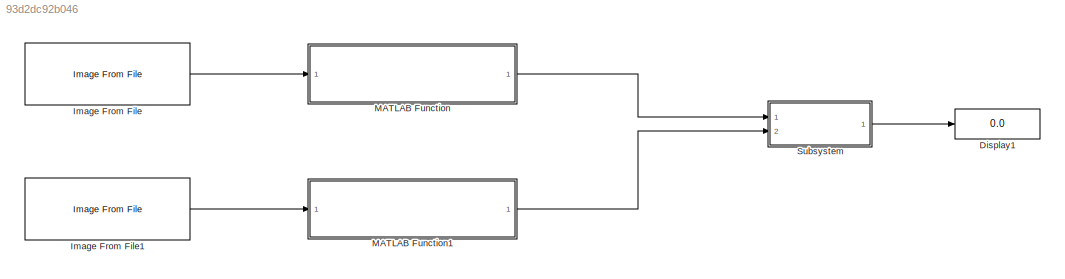
MODEL slx_93d2dc92b046
KIND model
CONFIG AbsTol = auto
CONFIG EnableMultiTasking = off
CONFIG FixedStep = auto
CONFIG MaxStep = auto
CONFIG MinStep = auto
CONFIG RelTol = 1e-3
CONFIG SampleTimeConstraint = Unconstrained
CONFIG SolverName = VariableStepAuto
CONFIG StartTime = 0.0
CONFIG StopTime = 10.0
BLOCK [Display] Display1
  Decimation = 1
  Ports = [1]
BLOCK [Reference] Image From File  REF=visionsources/Image From File
  Ports = [0, 1]
  SourceBlock = visionsources/Image From File
  SourceProductBaseCode = VP
  SourceType = Image From File
  Tag = vipblks_nd
BLOCK [Reference] Image From File1  REF=visionsources/Image From File
  Ports = [0, 1]
  SourceBlock = visionsources/Image From File
  SourceProductBaseCode = VP
  SourceType = Image From File
  Tag = vipblks_nd
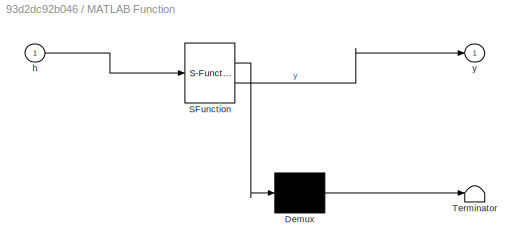
BLOCK [SubSystem] MATLAB Function
  ErrorFcn = Stateflow.Translate.translate
  PermitHierarchicalResolution = ExplicitOnly
  Ports = [1, 1]
  RequestExecContextInheritance = off
  SFBlockType = MATLAB Function
  TreatAsAtomicUnit = on
BLOCK [Demux] MATLAB Function/ Demux 
  Outputs = 1
  Ports = [1, 1]
BLOCK [S-Function] MATLAB Function/ SFunction 
  EnableBusSupport = on
  FunctionName = sf_sfun
  PortCounts = [1 2]
  Ports = [1, 2]
  SFcnIsStateOwnerBlock = off
  SFunctionDeploymentMode = off
  Tag = Stateflow S-Function 2
BLOCK [Terminator] MATLAB Function/ Terminator 
BLOCK [Inport] MATLAB Function/h
BLOCK [Outport] MATLAB Function/y
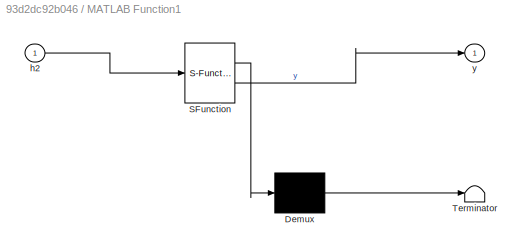
BLOCK [SubSystem] MATLAB Function1
  ErrorFcn = Stateflow.Translate.translate
  PermitHierarchicalResolution = ExplicitOnly
  Ports = [1, 1]
  RequestExecContextInheritance = off
  SFBlockType = MATLAB Function
  TreatAsAtomicUnit = on
BLOCK [Demux] MATLAB Function1/ Demux 
  Outputs = 1
  Ports = [1, 1]
BLOCK [S-Function] MATLAB Function1/ SFunction 
  EnableBusSupport = on
  FunctionName = sf_sfun
  PortCounts = [1 2]
  Ports = [1, 2]
  SFcnIsStateOwnerBlock = off
  SFunctionDeploymentMode = off
  Tag = Stateflow S-Function 1
BLOCK [Terminator] MATLAB Function1/ Terminator 
BLOCK [Inport] MATLAB Function1/h2
BLOCK [Outport] MATLAB Function1/y
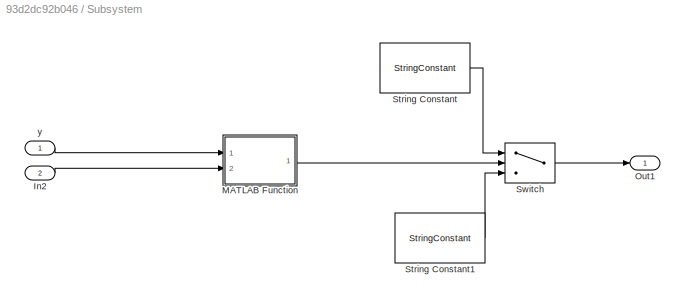
BLOCK [SubSystem] Subsystem
  Ports = [2, 1]
  RequestExecContextInheritance = off
BLOCK [Inport] Subsystem/In2
  Port = 2
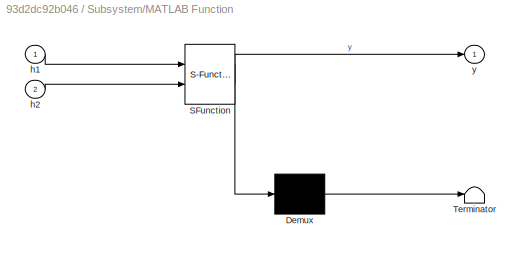
BLOCK [SubSystem] Subsystem/MATLAB Function
  ErrorFcn = Stateflow.Translate.translate
  PermitHierarchicalResolution = ExplicitOnly
  Ports = [2, 1]
  RequestExecContextInheritance = off
  SFBlockType = MATLAB Function
  TreatAsAtomicUnit = on
BLOCK [Demux] Subsystem/MATLAB Function/ Demux 
  Outputs = 1
  Ports = [1, 1]
BLOCK [S-Function] Subsystem/MATLAB Function/ SFunction 
  EnableBusSupport = on
  FunctionName = sf_sfun
  PortCounts = [2 2]
  Ports = [2, 2]
  SFcnIsStateOwnerBlock = off
  SFunctionDeploymentMode = off
  Tag = Stateflow S-Function 3
BLOCK [Terminator] Subsystem/MATLAB Function/ Terminator 
BLOCK [Inport] Subsystem/MATLAB Function/h1
BLOCK [Inport] Subsystem/MATLAB Function/h2
  Port = 2
BLOCK [Outport] Subsystem/MATLAB Function/y
BLOCK [Outport] Subsystem/Out1
BLOCK [StringConstant] Subsystem/String Constant
  String = "Not Healthy"
BLOCK [StringConstant] Subsystem/String Constant1
  String = "Healthy"
BLOCK [Switch] Subsystem/Switch
  Criteria = u2 > Threshold
  InputSameDT = off
  SaturateOnIntegerOverflow = off
BLOCK [Inport] Subsystem/y
LINE Image From File1:1 -> MATLAB Function1:1
LINE Image From File:1 -> MATLAB Function:1
LINE MATLAB Function1:1 -> Subsystem:2
LINE MATLAB Function:1 -> Subsystem:1
LINE Subsystem/In2:1 -> Subsystem/MATLAB Function:2
LINE Subsystem/MATLAB Function:1 -> Subsystem/Switch:2
LINE Subsystem/String Constant1:1 -> Subsystem/Switch:3
LINE Subsystem/String Constant:1 -> Subsystem/Switch:1
LINE Subsystem/Switch:1 -> Subsystem/Out1:1
LINE Subsystem/y:1 -> Subsystem/MATLAB Function:1
LINE Subsystem:1 -> Display1:1
CHART MATLAB Function states=1 transitions=1
  STATE_LABEL 'eML_blk_kernel()'
  STATE_LABEL "SCRIPT:\nfunction y = fcn(h)\nh = imread('hair22.jpg');\n%imshow(h)\n[count,x] = imhist(h);\nsz = size(h);\nR = h(:,:,1);\n%imshow(R)\n\n%to grayscale\nred=h(:,:,1);\ngreen=h(:,:,2);\nblue=h(:,:,3);\nimage_gray = im2gray(h);\n% figure (1),subplot (3,3,2), imshow(image_gray), title('grayscale');\n\n%tobinary\nlevel = graythresh(image_gray);\nBW = imbinarize (image_gray,level);\n% figure(1),subplot(3,3,3),imshow(BW), ...<+281ch>"
CHART Subsystem/MATLAB Function states=1 transitions=1
  STATE_LABEL 'eML_blk_kernel()'
  STATE_LABEL 'SCRIPT:\nfunction y = fcn(h1, h2)\nif(h1>h2)\n    y=1;\nelse\n    y=0;\nend\n\nend'
CHART MATLAB Function1 states=1 transitions=1
  STATE_LABEL 'eML_blk_kernel()'
  STATE_LABEL "SCRIPT:\nfunction y = fcn(h2)\nh2 = imread('hair21.jpg');\n%imshow(h2)\nR2 = h2(:,:,1);\n%imshow(R2)\n\n%to grayscale\nred2=h2(:,:,1);\ngreen2=h2(:,:,2);\nblue2=h2(:,:,3);\nimage_gray1 = im2gray(h2);\n%figure (1),subplot (3,3,2), imshow(image_gray1), title('grayscale2');\n\n%tobinary\nlevel2 = graythresh(image_gray1);\nBW2 = imbinarize (image_gray1,level2);\n%figure(1),subplot(3,3,3),imshow(BW2), title('binary2');...<+271ch>"
CHART  states=0 transitions=0
CHART  states=0 transitions=0
CHART  states=0 transitions=0
